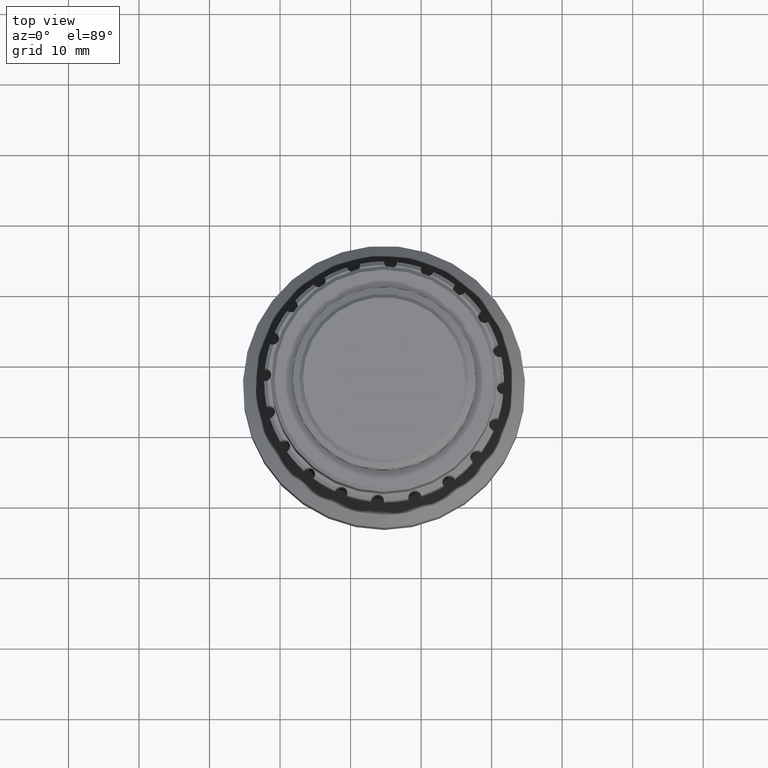
[diagram: clean part render]
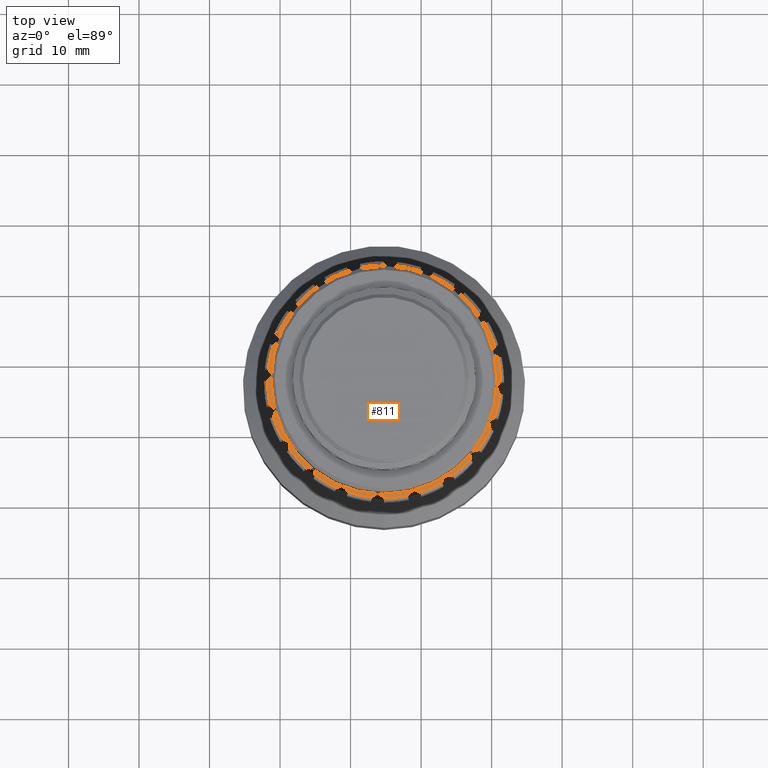
[diagram: same view with one face highlighted and labeled with its STEP entity id]
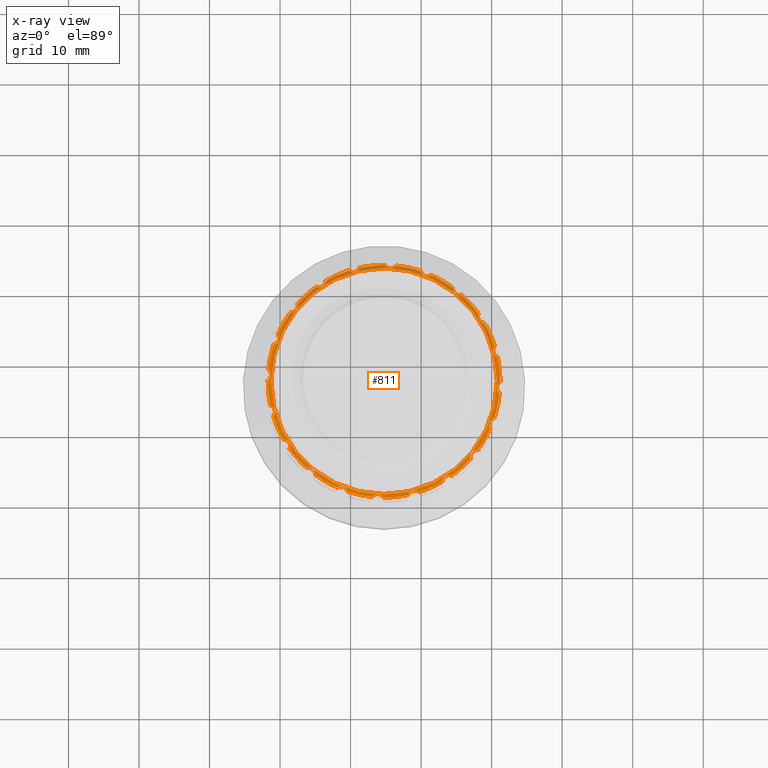
[diagram: x-ray of the same camera — body ghosted, the highlighted face saturated]
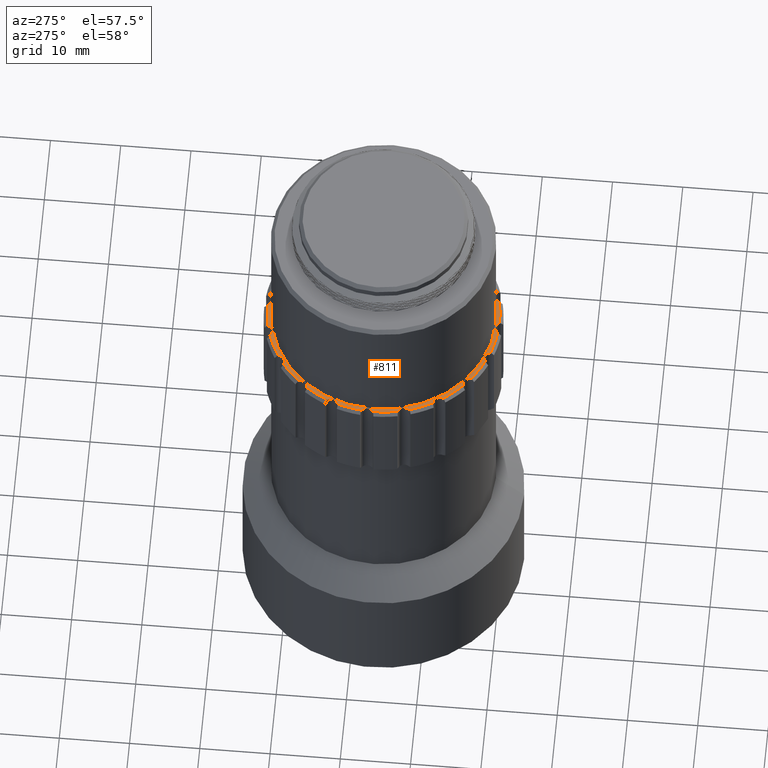
[diagram: same view with one face highlighted and labeled with its STEP entity id]
A machine part, top view. The second image highlights one B-rep face of the part: STEP entity #811.
The next image is the same camera in x-ray: the body ghosted, the highlighted face saturated — about 21% of this face is hidden behind the body in this view.
A second angle (auxiliary view) of the same face is appended — the face is thin or edge-on in the first view.
In plain terms, the highlighted planar face has unit normal (0, 0, 1).
Its self-contained STEP definition (entity closure, byte-faithful):
#3 = AXIS2_PLACEMENT_3D ( 'NONE', #9148, #7449, #13758 ) ;
#87 = DIRECTION ( 'NONE',  ( 1.000000000000000000, 0.000000000000000000, 0.000000000000000000 ) ) ;
#193 = CIRCLE ( 'NONE', #3736, 0.9347278216152304919 ) ;
#300 = DIRECTION ( 'NONE',  ( 0.000000000000000000, 0.000000000000000000, 1.000000000000000000 ) ) ;
#332 = EDGE_CURVE ( 'NONE', #16464, #7477, #2725, .T. ) ;
#357 = ORIENTED_EDGE ( 'NONE', *, *, #12848, .T. ) ;
#385 = DIRECTION ( 'NONE',  ( 0.000000000000000000, 0.000000000000000000, 1.000000000000000000 ) ) ;
#485 = EDGE_CURVE ( 'NONE', #6418, #17703, #4331, .T. ) ;
#490 = EDGE_CURVE ( 'NONE', #16464, #13504, #18427, .T. ) ;
#510 = CARTESIAN_POINT ( 'NONE',  ( -105.2614081662234184, -83.12817323313825568, 7.999999999999996447 ) ) ;
#533 = CARTESIAN_POINT ( 'NONE',  ( -119.5378223268529752, -91.40065766734394970, 7.999999999999996447 ) ) ;
#594 = EDGE_CURVE ( 'NONE', #18021, #13021, #1120, .T. ) ;
#673 = AXIS2_PLACEMENT_3D ( 'NONE', #12664, #4942, #1926 ) ;
#794 = DIRECTION ( 'NONE',  ( 0.000000000000000000, 0.000000000000000000, 1.000000000000000000 ) ) ;
#811 = ADVANCED_FACE ( 'NONE', ( #16605, #9263 ), #9068, .T. ) ;
#869 = DIRECTION ( 'NONE',  ( 0.000000000000000000, 0.000000000000000000, 1.000000000000000000 ) ) ;
#949 = EDGE_CURVE ( 'NONE', #4816, #16914, #13813, .T. ) ;
#953 = VERTEX_POINT ( 'NONE', #5035 ) ;
#986 = EDGE_CURVE ( 'NONE', #4558, #17703, #14794, .T. ) ;
#1064 = DIRECTION ( 'NONE',  ( 1.000000000000000000, 0.000000000000000000, 0.000000000000000000 ) ) ;
#1065 = CIRCLE ( 'NONE', #16455, 16.00000000000000000 ) ;
#1070 = DIRECTION ( 'NONE',  ( 0.000000000000000000, 0.000000000000000000, 1.000000000000000000 ) ) ;
#1116 = CARTESIAN_POINT ( 'NONE',  ( -89.26140816622341845, -83.12817323313825568, 7.999999999999996447 ) ) ;
#1120 = CIRCLE ( 'NONE', #9776, 16.49999999999998579 ) ;
#1215 = EDGE_CURVE ( 'NONE', #6589, #13504, #6832, .T. ) ;
#1243 = AXIS2_PLACEMENT_3D ( 'NONE', #11304, #17434, #3684 ) ;
#1638 = AXIS2_PLACEMENT_3D ( 'NONE', #17181, #4737, #17279 ) ;
#1717 = DIRECTION ( 'NONE',  ( 0.000000000000000000, 0.000000000000000000, 1.000000000000000000 ) ) ;
#1718 = DIRECTION ( 'NONE',  ( 0.000000000000000000, 0.000000000000000000, 1.000000000000000000 ) ) ;
#1757 = AXIS2_PLACEMENT_3D ( 'NONE', #7127, #19563, #10234 ) ;
#1797 = EDGE_CURVE ( 'NONE', #15614, #13867, #16563, .T. ) ;
#1840 = EDGE_CURVE ( 'NONE', #11071, #11368, #19130, .T. ) ;
#1897 = CIRCLE ( 'NONE', #2858, 16.49999999999998579 ) ;
#1926 = DIRECTION ( 'NONE',  ( 1.000000000000000000, 0.000000000000000000, 0.000000000000000000 ) ) ;
#1946 = CARTESIAN_POINT ( 'NONE',  ( -91.00111065570223445, -73.92109992991524337, 7.999999999999996447 ) ) ;
#2026 = VERTEX_POINT ( 'NONE', #5588 ) ;
#2079 = CIRCLE ( 'NONE', #11359, 16.49999999999998579 ) ;
#2082 = DIRECTION ( 'NONE',  ( 1.000000000000000000, 0.000000000000000000, 0.000000000000000000 ) ) ;
#2098 = CIRCLE ( 'NONE', #2732, 16.49999999999998579 ) ;
#2142 = CARTESIAN_POINT ( 'NONE',  ( -111.9488254906627276, -98.21221942535036931, 7.999999999999996447 ) ) ;
#2170 = CARTESIAN_POINT ( 'NONE',  ( -121.6737141911530244, -81.42928802687541179, 7.999999999999996447 ) ) ;
#2271 = DIRECTION ( 'NONE',  ( 1.000000000000000000, 0.000000000000000000, 0.000000000000000000 ) ) ;
#2295 = CARTESIAN_POINT ( 'NONE',  ( -105.2614081662234184, -83.12817323313825568, 7.999999999999996447 ) ) ;
#2326 = DIRECTION ( 'NONE',  ( 0.000000000000000000, 0.000000000000000000, 1.000000000000000000 ) ) ;
#2381 = AXIS2_PLACEMENT_3D ( 'NONE', #11571, #2326, #16473 ) ;
#2385 = EDGE_CURVE ( 'NONE', #7481, #17858, #18902, .T. ) ;
#2403 = CARTESIAN_POINT ( 'NONE',  ( -105.3748930782325175, -99.62778296109080145, 7.999999999999996447 ) ) ;
#2513 = AXIS2_PLACEMENT_3D ( 'NONE', #2852, #8971, #18117 ) ;
#2605 = CARTESIAN_POINT ( 'NONE',  ( -88.76179843827090110, -83.24165814514741157, 7.999999999999996447 ) ) ;
#2643 = CARTESIAN_POINT ( 'NONE',  ( -96.98892373201766759, -97.40458739376778396, 7.999999999999996447 ) ) ;
#2656 = DIRECTION ( 'NONE',  ( 1.000000000000000000, 0.000000000000000000, 0.000000000000000000 ) ) ;
#2704 = EDGE_CURVE ( 'NONE', #15614, #13021, #19861, .T. ) ;
#2725 = CIRCLE ( 'NONE', #5310, 16.49999999999998579 ) ;
#2732 = AXIS2_PLACEMENT_3D ( 'NONE', #15353, #300, #87 ) ;
#2778 = AXIS2_PLACEMENT_3D ( 'NONE', #11515, #869, #3989 ) ;
#2852 = CARTESIAN_POINT ( 'NONE',  ( -105.2614081662234184, -83.12817323313825568, 7.999999999999996447 ) ) ;
#2858 = AXIS2_PLACEMENT_3D ( 'NONE', #5093, #4996, #11206 ) ;
#2867 = AXIS2_PLACEMENT_3D ( 'NONE', #13571, #1718, #16790 ) ;
#2920 = DIRECTION ( 'NONE',  ( 1.000000000000000000, 0.000000000000000000, 0.000000000000000000 ) ) ;
#3047 = VERTEX_POINT ( 'NONE', #18232 ) ;
#3050 = CIRCLE ( 'NONE', #7528, 0.9347278216152429264 ) ;
#3095 = AXIS2_PLACEMENT_3D ( 'NONE', #2295, #794, #19056 ) ;
#3117 = ORIENTED_EDGE ( 'NONE', *, *, #11404, .F. ) ;
#3275 = CARTESIAN_POINT ( 'NONE',  ( -95.65499212197198631, -96.54334266124270414, 7.999999999999996447 ) ) ;
#3325 = CIRCLE ( 'NONE', #9731, 16.49999999999998579 ) ;
#3387 = DIRECTION ( 'NONE',  ( 0.000000000000000000, 0.000000000000000000, 1.000000000000000000 ) ) ;
#3415 = CIRCLE ( 'NONE', #17197, 16.49999999999998579 ) ;
#3485 = CARTESIAN_POINT ( 'NONE',  ( -120.9885382807355541, -88.11890247456233283, 7.999999999999996447 ) ) ;
#3498 = CIRCLE ( 'NONE', #14052, 0.9347278216152317132 ) ;
#3510 = CARTESIAN_POINT ( 'NONE',  ( -109.6111809516670661, -66.72068224229775524, 7.999999999999996447 ) ) ;
#3513 = CARTESIAN_POINT ( 'NONE',  ( -100.0548177946645296, -67.47118065145802746, 7.999999999999996447 ) ) ;
#3611 = CARTESIAN_POINT ( 'NONE',  ( -110.2521374076476519, -67.40104311862619113, 7.999999999999996447 ) ) ;
#3646 = AXIS2_PLACEMENT_3D ( 'NONE', #7533, #13650, #19778 ) ;
#3661 = DIRECTION ( 'NONE',  ( 0.000000000000000000, 0.000000000000000000, 1.000000000000000000 ) ) ;
#3684 = DIRECTION ( 'NONE',  ( 1.000000000000000000, 0.000000000000000000, 0.000000000000000000 ) ) ;
#3696 = AXIS2_PLACEMENT_3D ( 'NONE', #3699, #11214, #2082 ) ;
#3699 = CARTESIAN_POINT ( 'NONE',  ( -105.2614081662234184, -83.12817323313825568, 7.999999999999996447 ) ) ;
#3736 = AXIS2_PLACEMENT_3D ( 'NONE', #3986, #13109, #11606 ) ;
#3760 = ORIENTED_EDGE ( 'NONE', *, *, #19237, .T. ) ;
#3777 = ORIENTED_EDGE ( 'NONE', *, *, #11756, .F. ) ;
#3949 = EDGE_CURVE ( 'NONE', #18645, #15713, #10576, .T. ) ;
#3984 = CIRCLE ( 'NONE', #3646, 0.9347278216152339336 ) ;
#3986 = CARTESIAN_POINT ( 'NONE',  ( -104.3280943669993377, -66.17956829787362949, 7.999999999999996447 ) ) ;
#3989 = DIRECTION ( 'NONE',  ( 0.000000000000000000, 1.000000000000000000, 0.000000000000000000 ) ) ;
#4296 = EDGE_CURVE ( 'NONE', #14223, #19057, #6751, .T. ) ;
#4298 = ORIENTED_EDGE ( 'NONE', *, *, #10094, .T. ) ;
#4303 = ORIENTED_EDGE ( 'NONE', *, *, #9536, .F. ) ;
#4331 = CIRCLE ( 'NONE', #19074, 0.9347278216152398178 ) ;
#4414 = DIRECTION ( 'NONE',  ( 0.000000000000000000, 0.000000000000000000, 1.000000000000000000 ) ) ;
#4455 = DIRECTION ( 'NONE',  ( 0.000000000000000000, 0.000000000000000000, 1.000000000000000000 ) ) ;
#4530 = CARTESIAN_POINT ( 'NONE',  ( -105.2614081662234184, -83.12817323313825568, 7.999999999999996447 ) ) ;
#4558 = VERTEX_POINT ( 'NONE', #3611 ) ;
#4650 = ORIENTED_EDGE ( 'NONE', *, *, #7441, .T. ) ;
#4651 = EDGE_CURVE ( 'NONE', #953, #17858, #3415, .T. ) ;
#4737 = DIRECTION ( 'NONE',  ( 0.000000000000000000, 0.000000000000000000, 1.000000000000000000 ) ) ;
#4771 = CIRCLE ( 'NONE', #1243, 16.49999999999998579 ) ;
#4778 = ORIENTED_EDGE ( 'NONE', *, *, #12110, .T. ) ;
#4816 = VERTEX_POINT ( 'NONE', #3275 ) ;
#4852 = VERTEX_POINT ( 'NONE', #2170 ) ;
#4936 = CARTESIAN_POINT ( 'NONE',  ( -101.8054625334914931, -99.26218822580516132, 7.999999999999996447 ) ) ;
#4942 = DIRECTION ( 'NONE',  ( -0.000000000000000000, 0.000000000000000000, 1.000000000000000000 ) ) ;
#4996 = DIRECTION ( 'NONE',  ( 0.000000000000000000, 0.000000000000000000, 1.000000000000000000 ) ) ;
#5035 = CARTESIAN_POINT ( 'NONE',  ( -115.0514466553158570, -96.40993314596939001, 7.999999999999996447 ) ) ;
#5053 = ORIENTED_EDGE ( 'NONE', *, *, #949, .F. ) ;
#5088 = EDGE_CURVE ( 'NONE', #14683, #14729, #193, .T. ) ;
#5093 = CARTESIAN_POINT ( 'NONE',  ( -105.2614081662234184, -83.12817323313825568, 7.999999999999996447 ) ) ;
#5129 = DIRECTION ( 'NONE',  ( 1.000000000000000000, 0.000000000000000000, 0.000000000000000000 ) ) ;
#5201 = ORIENTED_EDGE ( 'NONE', *, *, #5346, .F. ) ;
#5310 = AXIS2_PLACEMENT_3D ( 'NONE', #510, #11449, #5129 ) ;
#5319 = CARTESIAN_POINT ( 'NONE',  ( -105.2614081662234184, -83.12817323313825568, 7.999999999999996447 ) ) ;
#5323 = DIRECTION ( 'NONE',  ( 0.000000000000000000, 0.000000000000000000, 1.000000000000000000 ) ) ;
#5346 = EDGE_CURVE ( 'NONE', #11423, #13867, #7249, .T. ) ;
#5422 = CARTESIAN_POINT ( 'NONE',  ( -105.2614081662234184, -83.12817323313825568, 7.999999999999996447 ) ) ;
#5442 = CIRCLE ( 'NONE', #2867, 0.9347278216152428154 ) ;
#5542 = CARTESIAN_POINT ( 'NONE',  ( -99.13636703977927311, -67.29750189238752967, 7.999999999999996447 ) ) ;
#5588 = CARTESIAN_POINT ( 'NONE',  ( -120.9184007479036751, -77.92158286157945213, 7.999999999999996447 ) ) ;
#5619 = EDGE_CURVE ( 'NONE', #4558, #10373, #19441, .T. ) ;
#5664 = CIRCLE ( 'NONE', #3095, 16.49999999999998579 ) ;
#5692 = CARTESIAN_POINT ( 'NONE',  ( -105.2614081662234184, -83.12817323313825568, 7.999999999999996447 ) ) ;
#5702 = EDGE_CURVE ( 'NONE', #4816, #11568, #5664, .T. ) ;
#5744 = CARTESIAN_POINT ( 'NONE',  ( -105.2614081662234184, -83.12817323313825568, 7.999999999999996447 ) ) ;
#5989 = ORIENTED_EDGE ( 'NONE', *, *, #14925, .F. ) ;
#6111 = CARTESIAN_POINT ( 'NONE',  ( -105.2614081662234184, -83.12817323313825568, 7.999999999999996447 ) ) ;
#6272 = CIRCLE ( 'NONE', #15236, 0.9347278216152304919 ) ;
#6389 = CARTESIAN_POINT ( 'NONE',  ( -88.84910214129382666, -84.82705843940111379, 7.999999999999996447 ) ) ;
#6418 = VERTEX_POINT ( 'NONE', #17691 ) ;
#6485 = ORIENTED_EDGE ( 'NONE', *, *, #8941, .T. ) ;
#6513 = DIRECTION ( 'NONE',  ( 0.8090169943749581094, -0.5877852522924585932, 0.000000000000000000 ) ) ;
#6589 = VERTEX_POINT ( 'NONE', #17589 ) ;
#6751 = CIRCLE ( 'NONE', #13776, 16.49999999999998579 ) ;
#6832 = CIRCLE ( 'NONE', #10040, 16.49999999999998579 ) ;
#6858 = CARTESIAN_POINT ( 'NONE',  ( -98.57399084178425142, -68.04412704092608521, 7.999999999999996447 ) ) ;
#7058 = EDGE_CURVE ( 'NONE', #2026, #17686, #5442, .T. ) ;
#7101 = DIRECTION ( 'NONE',  ( 0.000000000000000000, 0.000000000000000000, 1.000000000000000000 ) ) ;
#7127 = CARTESIAN_POINT ( 'NONE',  ( -89.43073682547273506, -89.25321435958244365, 7.999999999999996447 ) ) ;
#7249 = CIRCLE ( 'NONE', #9818, 0.9347278216152398178 ) ;
#7265 = AXIS2_PLACEMENT_3D ( 'NONE', #16032, #8495, #2271 ) ;
#7293 = CARTESIAN_POINT ( 'NONE',  ( -91.84623873811901262, -73.52175718888679512, 7.999999999999996447 ) ) ;
#7387 = DIRECTION ( 'NONE',  ( 1.000000000000000000, 0.000000000000000000, 0.000000000000000000 ) ) ;
#7422 = ORIENTED_EDGE ( 'NONE', *, *, #1797, .T. ) ;
#7441 = EDGE_CURVE ( 'NONE', #14350, #17686, #4771, .T. ) ;
#7449 = DIRECTION ( 'NONE',  ( 0.000000000000000000, 0.000000000000000000, 1.000000000000000000 ) ) ;
#7477 = VERTEX_POINT ( 'NONE', #6389 ) ;
#7481 = VERTEX_POINT ( 'NONE', #18630 ) ;
#7528 = AXIS2_PLACEMENT_3D ( 'NONE', #10303, #1070, #10493 ) ;
#7533 = CARTESIAN_POINT ( 'NONE',  ( -121.6688991570639615, -87.47794601858173280, 7.999999999999996447 ) ) ;
#7548 = DIRECTION ( 'NONE',  ( 0.000000000000000000, 0.000000000000000000, 1.000000000000000000 ) ) ;
#7616 = DIRECTION ( 'NONE',  ( 1.000000000000000000, 0.000000000000000000, 0.000000000000000000 ) ) ;
#7624 = ORIENTED_EDGE ( 'NONE', *, *, #5088, .F. ) ;
#7641 = EDGE_CURVE ( 'NONE', #11071, #15713, #12454, .T. ) ;
#7738 = EDGE_CURVE ( 'NONE', #3047, #17483, #3498, .T. ) ;
#8094 = EDGE_CURVE ( 'NONE', #17624, #12380, #1897, .T. ) ;
#8243 = DIRECTION ( 'NONE',  ( -0.3090169943749532244, 0.9510565162951516438, 0.000000000000000000 ) ) ;
#8269 = DIRECTION ( 'NONE',  ( 0.8090169943749458970, 0.5877852522924752465, 0.000000000000000000 ) ) ;
#8342 = ORIENTED_EDGE ( 'NONE', *, *, #9682, .T. ) ;
#8379 = VERTEX_POINT ( 'NONE', #9874 ) ;
#8423 = DIRECTION ( 'NONE',  ( 1.000000000000000000, 0.000000000000000000, 0.000000000000000000 ) ) ;
#8487 = CARTESIAN_POINT ( 'NONE',  ( -105.2614081662234184, -83.12817323313825568, 7.999999999999996447 ) ) ;
#8495 = DIRECTION ( 'NONE',  ( 0.000000000000000000, 0.000000000000000000, 1.000000000000000000 ) ) ;
#8499 = CIRCLE ( 'NONE', #3696, 16.49999999999998579 ) ;
#8527 = DIRECTION ( 'NONE',  ( 0.000000000000000000, 0.000000000000000000, 1.000000000000000000 ) ) ;
#8551 = DIRECTION ( 'NONE',  ( 0.000000000000000000, 0.000000000000000000, 1.000000000000000000 ) ) ;
#8591 = DIRECTION ( 'NONE',  ( 0.000000000000000000, 0.000000000000000000, 1.000000000000000000 ) ) ;
#8680 = AXIS2_PLACEMENT_3D ( 'NONE', #9347, #1717, #14172 ) ;
#8683 = ORIENTED_EDGE ( 'NONE', *, *, #2385, .F. ) ;
#8715 = ORIENTED_EDGE ( 'NONE', *, *, #1215, .T. ) ;
#8832 = VERTEX_POINT ( 'NONE', #3513 ) ;
#8906 = CARTESIAN_POINT ( 'NONE',  ( -103.5625229599607593, -66.71586720820863547, 7.999999999999996447 ) ) ;
#8941 = EDGE_CURVE ( 'NONE', #14683, #10373, #18601, .T. ) ;
#8971 = DIRECTION ( 'NONE',  ( 0.000000000000000000, 0.000000000000000000, 1.000000000000000000 ) ) ;
#9068 = PLANE ( 'NONE',  #2513 ) ;
#9080 = AXIS2_PLACEMENT_3D ( 'NONE', #11022, #385, #6513 ) ;
#9087 = ORIENTED_EDGE ( 'NONE', *, *, #9506, .F. ) ;
#9107 = CIRCLE ( 'NONE', #2381, 0.9347278216152429264 ) ;
#9148 = CARTESIAN_POINT ( 'NONE',  ( -105.2614081662234184, -83.12817323313825568, 7.999999999999996447 ) ) ;
#9263 = FACE_BOUND ( 'NONE', #10956, .T. ) ;
#9301 = AXIS2_PLACEMENT_3D ( 'NONE', #5422, #8527, #8423 ) ;
#9347 = CARTESIAN_POINT ( 'NONE',  ( -115.9786149187604281, -96.29129456976937718, 7.999999999999996447 ) ) ;
#9374 = AXIS2_PLACEMENT_3D ( 'NONE', #14822, #10589, #1064 ) ;
#9386 = ORIENTED_EDGE ( 'NONE', *, *, #7058, .F. ) ;
#9436 = CARTESIAN_POINT ( 'NONE',  ( -113.5338926004292830, -68.85175907250879845, 7.999999999999996447 ) ) ;
#9506 = EDGE_CURVE ( 'NONE', #17624, #4852, #12851, .T. ) ;
#9536 = EDGE_CURVE ( 'NONE', #953, #14736, #18288, .T. ) ;
#9566 = EDGE_CURVE ( 'NONE', #8832, #19057, #9631, .T. ) ;
#9590 = CARTESIAN_POINT ( 'NONE',  ( -90.98499400559393280, -74.85568879893244798, 7.999999999999996447 ) ) ;
#9631 = CIRCLE ( 'NONE', #17988, 0.9347278216152428154 ) ;
#9638 = CARTESIAN_POINT ( 'NONE',  ( -100.9116353807799129, -99.53566422397879876, 7.999999999999996447 ) ) ;
#9682 = EDGE_CURVE ( 'NONE', #6418, #8379, #16371, .T. ) ;
#9718 = CIRCLE ( 'NONE', #9080, 0.9347278216152347108 ) ;
#9731 = AXIS2_PLACEMENT_3D ( 'NONE', #5692, #7101, #7387 ) ;
#9776 = AXIS2_PLACEMENT_3D ( 'NONE', #6111, #12431, #7616 ) ;
#9793 = ORIENTED_EDGE ( 'NONE', *, *, #332, .T. ) ;
#9818 = AXIS2_PLACEMENT_3D ( 'NONE', #1946, #3661, #15798 ) ;
#9830 = ORIENTED_EDGE ( 'NONE', *, *, #485, .F. ) ;
#9874 = CARTESIAN_POINT ( 'NONE',  ( -117.5406629876947875, -72.10683479221503944, 7.999999999999996447 ) ) ;
#9962 = CARTESIAN_POINT ( 'NONE',  ( -95.47136967713109357, -69.84641332030703609, 7.999999999999996447 ) ) ;
#9970 = DIRECTION ( 'NONE',  ( 0.000000000000000000, 0.000000000000000000, 1.000000000000000000 ) ) ;
#9975 = ORIENTED_EDGE ( 'NONE', *, *, #7738, .F. ) ;
#10000 = ORIENTED_EDGE ( 'NONE', *, *, #17572, .F. ) ;
#10023 = DIRECTION ( 'NONE',  ( 0.3090169943749532244, -0.9510565162951516438, 0.000000000000000000 ) ) ;
#10040 = AXIS2_PLACEMENT_3D ( 'NONE', #16071, #11556, #11648 ) ;
#10094 = EDGE_CURVE ( 'NONE', #11423, #17626, #2079, .T. ) ;
#10234 = DIRECTION ( 'NONE',  ( -0.9510565162951560847, 0.3090169943749397907, 0.000000000000000000 ) ) ;
#10249 = AXIS2_PLACEMENT_3D ( 'NONE', #15463, #7548, #12460 ) ;
#10303 = CARTESIAN_POINT ( 'NONE',  ( -94.54420141368652253, -69.96505189650706313, 7.999999999999996447 ) ) ;
#10373 = VERTEX_POINT ( 'NONE', #19060 ) ;
#10493 = DIRECTION ( 'NONE',  ( -0.5877852522924682521, -0.8090169943749510040, 0.000000000000000000 ) ) ;
#10497 = ORIENTED_EDGE ( 'NONE', *, *, #3949, .F. ) ;
#10563 = AXIS2_PLACEMENT_3D ( 'NONE', #17315, #9970, #16005 ) ;
#10576 = CIRCLE ( 'NONE', #14446, 0.9347278216152339336 ) ;
#10589 = DIRECTION ( 'NONE',  ( 0.000000000000000000, 0.000000000000000000, 1.000000000000000000 ) ) ;
#10637 = CARTESIAN_POINT ( 'NONE',  ( -105.2614081662234184, -83.12817323313825568, 7.999999999999996447 ) ) ;
#10723 = EDGE_CURVE ( 'NONE', #14801, #17483, #8499, .T. ) ;
#10956 = EDGE_LOOP ( 'NONE', ( #5989 ) ) ;
#11022 = CARTESIAN_POINT ( 'NONE',  ( -118.4245295028546536, -72.41096648060140240, 7.999999999999996447 ) ) ;
#11063 = EDGE_LOOP ( 'NONE', ( #9975, #4778, #4303, #11857, #8683, #18087, #19317, #12095, #10497, #3760, #5053, #16422, #15787, #8715, #17328, #9793, #3777, #15610, #19864, #7422, #5201, #4298, #3117, #16595, #12025, #11295, #7624, #6485, #15814, #15762, #9830, #8342, #15158, #4650, #9386, #357, #9087, #15750, #10000, #15827 ) ) ;
#11071 = VERTEX_POINT ( 'NONE', #2403 ) ;
#11146 = DIRECTION ( 'NONE',  ( 0.000000000000000000, 0.000000000000000000, 1.000000000000000000 ) ) ;
#11206 = DIRECTION ( 'NONE',  ( 1.000000000000000000, 0.000000000000000000, 0.000000000000000000 ) ) ;
#11214 = DIRECTION ( 'NONE',  ( 0.000000000000000000, 0.000000000000000000, 1.000000000000000000 ) ) ;
#11295 = ORIENTED_EDGE ( 'NONE', *, *, #14206, .T. ) ;
#11304 = CARTESIAN_POINT ( 'NONE',  ( -105.2614081662234184, -83.12817323313825568, 7.999999999999996447 ) ) ;
#11359 = AXIS2_PLACEMENT_3D ( 'NONE', #10637, #12141, #15062 ) ;
#11368 = VERTEX_POINT ( 'NONE', #15022 ) ;
#11404 = EDGE_CURVE ( 'NONE', #14223, #17626, #3050, .T. ) ;
#11423 = VERTEX_POINT ( 'NONE', #7293 ) ;
#11433 = DIRECTION ( 'NONE',  ( 0.000000000000000000, 0.000000000000000000, 1.000000000000000000 ) ) ;
#11449 = DIRECTION ( 'NONE',  ( 0.000000000000000000, 0.000000000000000000, 1.000000000000000000 ) ) ;
#11485 = DIRECTION ( 'NONE',  ( 0.000000000000000000, 0.000000000000000000, 1.000000000000000000 ) ) ;
#11515 = CARTESIAN_POINT ( 'NONE',  ( -106.1947219654476129, -100.0767781684028677, 7.999999999999996447 ) ) ;
#11556 = DIRECTION ( 'NONE',  ( 0.000000000000000000, 0.000000000000000000, 1.000000000000000000 ) ) ;
#11568 = VERTEX_POINT ( 'NONE', #12404 ) ;
#11571 = CARTESIAN_POINT ( 'NONE',  ( -92.09828682959228274, -93.84537998567522266, 7.999999999999996447 ) ) ;
#11606 = DIRECTION ( 'NONE',  ( 1.484687572884407299E-14, -1.000000000000000000, 0.000000000000000000 ) ) ;
#11627 = CIRCLE ( 'NONE', #9374, 16.49999999999998579 ) ;
#11648 = DIRECTION ( 'NONE',  ( 1.000000000000000000, 0.000000000000000000, 0.000000000000000000 ) ) ;
#11661 = DIRECTION ( 'NONE',  ( -0.3090169943749354053, -0.9510565162951575280, 0.000000000000000000 ) ) ;
#11672 = DIRECTION ( 'NONE',  ( 0.000000000000000000, 0.000000000000000000, 1.000000000000000000 ) ) ;
#11756 = EDGE_CURVE ( 'NONE', #18021, #7477, #6272, .T. ) ;
#11824 = CARTESIAN_POINT ( 'NONE',  ( -116.2827466071467768, -95.40742805460951104, 7.999999999999996447 ) ) ;
#11857 = ORIENTED_EDGE ( 'NONE', *, *, #4651, .T. ) ;
#11906 = AXIS2_PLACEMENT_3D ( 'NONE', #17379, #11146, #12355 ) ;
#11958 = DIRECTION ( 'NONE',  ( 1.000000000000000000, 0.000000000000000000, 0.000000000000000000 ) ) ;
#12025 = ORIENTED_EDGE ( 'NONE', *, *, #9566, .F. ) ;
#12095 = ORIENTED_EDGE ( 'NONE', *, *, #7641, .T. ) ;
#12110 = EDGE_CURVE ( 'NONE', #3047, #14736, #17486, .T. ) ;
#12141 = DIRECTION ( 'NONE',  ( 0.000000000000000000, 0.000000000000000000, 1.000000000000000000 ) ) ;
#12355 = DIRECTION ( 'NONE',  ( -0.5877852522924752465, 0.8090169943749458970, 0.000000000000000000 ) ) ;
#12380 = VERTEX_POINT ( 'NONE', #18624 ) ;
#12404 = CARTESIAN_POINT ( 'NONE',  ( -92.98215334475213467, -94.14951167406157140, 7.999999999999996447 ) ) ;
#12431 = DIRECTION ( 'NONE',  ( 0.000000000000000000, 0.000000000000000000, 1.000000000000000000 ) ) ;
#12454 = CIRCLE ( 'NONE', #13417, 16.49999999999998579 ) ;
#12460 = DIRECTION ( 'NONE',  ( -0.9510565162951516438, -0.3090169943749532244, 0.000000000000000000 ) ) ;
#12664 = CARTESIAN_POINT ( 'NONE',  ( -122.2100131014880304, -82.19485943391399019, 7.999999999999996447 ) ) ;
#12729 = DIRECTION ( 'NONE',  ( 0.000000000000000000, 0.000000000000000000, 1.000000000000000000 ) ) ;
#12848 = EDGE_CURVE ( 'NONE', #2026, #4852, #3325, .T. ) ;
#12851 = CIRCLE ( 'NONE', #673, 0.9347278216152304919 ) ;
#12998 = AXIS2_PLACEMENT_3D ( 'NONE', #4530, #12729, #2920 ) ;
#13021 = VERTEX_POINT ( 'NONE', #17323 ) ;
#13109 = DIRECTION ( 'NONE',  ( 0.000000000000000000, 0.000000000000000000, 1.000000000000000000 ) ) ;
#13417 = AXIS2_PLACEMENT_3D ( 'NONE', #16223, #19322, #2656 ) ;
#13485 = EDGE_CURVE ( 'NONE', #6589, #11568, #9107, .T. ) ;
#13504 = VERTEX_POINT ( 'NONE', #14777 ) ;
#13571 = CARTESIAN_POINT ( 'NONE',  ( -121.0920795069741445, -77.00313210669418140, 7.999999999999996447 ) ) ;
#13650 = DIRECTION ( 'NONE',  ( 0.000000000000000000, 0.000000000000000000, 1.000000000000000000 ) ) ;
#13758 = DIRECTION ( 'NONE',  ( 1.000000000000000000, 0.000000000000000000, 0.000000000000000000 ) ) ;
#13776 = AXIS2_PLACEMENT_3D ( 'NONE', #8487, #8591, #19022 ) ;
#13813 = CIRCLE ( 'NONE', #11906, 0.9347278216152317132 ) ;
#13867 = VERTEX_POINT ( 'NONE', #9590 ) ;
#14004 = CARTESIAN_POINT ( 'NONE',  ( -100.2706789247993271, -98.85530334765037708, 7.999999999999996447 ) ) ;
#14052 = AXIS2_PLACEMENT_3D ( 'NONE', #19296, #11485, #8269 ) ;
#14172 = DIRECTION ( 'NONE',  ( 0.5877852522924752465, 0.8090169943749458970, 0.000000000000000000 ) ) ;
#14206 = EDGE_CURVE ( 'NONE', #8832, #14729, #16480, .T. ) ;
#14223 = VERTEX_POINT ( 'NONE', #9962 ) ;
#14321 = AXIS2_PLACEMENT_3D ( 'NONE', #3510, #5323, #10023 ) ;
#14350 = VERTEX_POINT ( 'NONE', #16674 ) ;
#14446 = AXIS2_PLACEMENT_3D ( 'NONE', #9638, #18773, #8243 ) ;
#14603 = EDGE_CURVE ( 'NONE', #14350, #8379, #9718, .T. ) ;
#14683 = VERTEX_POINT ( 'NONE', #19154 ) ;
#14729 = VERTEX_POINT ( 'NONE', #8906 ) ;
#14736 = VERTEX_POINT ( 'NONE', #11824 ) ;
#14777 = CARTESIAN_POINT ( 'NONE',  ( -90.17736197401129061, -89.81559055757747956, 7.999999999999996447 ) ) ;
#14794 = CIRCLE ( 'NONE', #1638, 16.49999999999998579 ) ;
#14801 = VERTEX_POINT ( 'NONE', #3485 ) ;
#14822 = CARTESIAN_POINT ( 'NONE',  ( -105.2614081662234184, -83.12817323313825568, 7.999999999999996447 ) ) ;
#14872 = VERTEX_POINT ( 'NONE', #1116 ) ;
#14925 = EDGE_CURVE ( 'NONE', #14872, #14872, #1065, .T. ) ;
#14974 = CARTESIAN_POINT ( 'NONE',  ( -121.7610178941759500, -83.01468832112909979, 7.999999999999996447 ) ) ;
#15022 = CARTESIAN_POINT ( 'NONE',  ( -106.9602933724862197, -99.54047925806787589, 7.999999999999996447 ) ) ;
#15062 = DIRECTION ( 'NONE',  ( 1.000000000000000000, 0.000000000000000000, 0.000000000000000000 ) ) ;
#15158 = ORIENTED_EDGE ( 'NONE', *, *, #14603, .F. ) ;
#15236 = AXIS2_PLACEMENT_3D ( 'NONE', #18495, #4455, #15475 ) ;
#15353 = CARTESIAN_POINT ( 'NONE',  ( -105.2614081662234184, -83.12817323313825568, 7.999999999999996447 ) ) ;
#15463 = CARTESIAN_POINT ( 'NONE',  ( -88.85391717538290379, -78.77840044769467909, 7.999999999999996447 ) ) ;
#15475 = DIRECTION ( 'NONE',  ( -1.000000000000000000, 0.000000000000000000, 0.000000000000000000 ) ) ;
#15610 = ORIENTED_EDGE ( 'NONE', *, *, #594, .T. ) ;
#15614 = VERTEX_POINT ( 'NONE', #16882 ) ;
#15713 = VERTEX_POINT ( 'NONE', #4936 ) ;
#15750 = ORIENTED_EDGE ( 'NONE', *, *, #8094, .T. ) ;
#15762 = ORIENTED_EDGE ( 'NONE', *, *, #986, .T. ) ;
#15787 = ORIENTED_EDGE ( 'NONE', *, *, #13485, .F. ) ;
#15798 = DIRECTION ( 'NONE',  ( -0.8090169943749389025, -0.5877852522924850165, 0.000000000000000000 ) ) ;
#15814 = ORIENTED_EDGE ( 'NONE', *, *, #5619, .F. ) ;
#15827 = ORIENTED_EDGE ( 'NONE', *, *, #10723, .T. ) ;
#15931 = EDGE_CURVE ( 'NONE', #7481, #11368, #11627, .T. ) ;
#16005 = DIRECTION ( 'NONE',  ( 0.3090169943749397907, 0.9510565162951560847, 0.000000000000000000 ) ) ;
#16032 = CARTESIAN_POINT ( 'NONE',  ( -105.2614081662234184, -83.12817323313825568, 7.999999999999996447 ) ) ;
#16053 = DIRECTION ( 'NONE',  ( 1.000000000000000000, 0.000000000000000000, 0.000000000000000000 ) ) ;
#16071 = CARTESIAN_POINT ( 'NONE',  ( -105.2614081662234184, -83.12817323313825568, 7.999999999999996447 ) ) ;
#16223 = CARTESIAN_POINT ( 'NONE',  ( -105.2614081662234184, -83.12817323313825568, 7.999999999999996447 ) ) ;
#16371 = CIRCLE ( 'NONE', #3, 16.49999999999998579 ) ;
#16422 = ORIENTED_EDGE ( 'NONE', *, *, #5702, .T. ) ;
#16455 = AXIS2_PLACEMENT_3D ( 'NONE', #18633, #3387, #17239 ) ;
#16464 = VERTEX_POINT ( 'NONE', #17990 ) ;
#16473 = DIRECTION ( 'NONE',  ( -0.8090169943749510040, 0.5877852522924682521, 0.000000000000000000 ) ) ;
#16480 = CIRCLE ( 'NONE', #18089, 16.49999999999998579 ) ;
#16563 = CIRCLE ( 'NONE', #7265, 16.49999999999998579 ) ;
#16595 = ORIENTED_EDGE ( 'NONE', *, *, #4296, .T. ) ;
#16605 = FACE_OUTER_BOUND ( 'NONE', #11063, .T. ) ;
#16674 = CARTESIAN_POINT ( 'NONE',  ( -118.5431680790546665, -73.33813474404595922, 7.999999999999996447 ) ) ;
#16767 = CARTESIAN_POINT ( 'NONE',  ( -94.24006972530017379, -70.84891841166691506, 7.999999999999996447 ) ) ;
#16790 = DIRECTION ( 'NONE',  ( 0.9510565162951575280, -0.3090169943749354053, 0.000000000000000000 ) ) ;
#16882 = CARTESIAN_POINT ( 'NONE',  ( -89.53427805171132547, -78.13744399171409327, 7.999999999999996447 ) ) ;
#16914 = VERTEX_POINT ( 'NONE', #2643 ) ;
#17181 = CARTESIAN_POINT ( 'NONE',  ( -105.2614081662234184, -83.12817323313825568, 7.999999999999996447 ) ) ;
#17197 = AXIS2_PLACEMENT_3D ( 'NONE', #5319, #11433, #16053 ) ;
#17239 = DIRECTION ( 'NONE',  ( 1.000000000000000000, 0.000000000000000000, 0.000000000000000000 ) ) ;
#17279 = DIRECTION ( 'NONE',  ( 1.000000000000000000, 0.000000000000000000, 0.000000000000000000 ) ) ;
#17315 = CARTESIAN_POINT ( 'NONE',  ( -111.3864492926676917, -98.95884457388892486, 7.999999999999996447 ) ) ;
#17323 = CARTESIAN_POINT ( 'NONE',  ( -89.12739317355652702, -79.67222760040627350, 7.999999999999996447 ) ) ;
#17328 = ORIENTED_EDGE ( 'NONE', *, *, #490, .F. ) ;
#17379 = CARTESIAN_POINT ( 'NONE',  ( -96.05433486300046297, -97.38847074365945389, 7.999999999999996447 ) ) ;
#17434 = DIRECTION ( 'NONE',  ( 0.000000000000000000, 0.000000000000000000, 1.000000000000000000 ) ) ;
#17483 = VERTEX_POINT ( 'NONE', #533 ) ;
#17486 = CIRCLE ( 'NONE', #12998, 16.49999999999998579 ) ;
#17572 = EDGE_CURVE ( 'NONE', #14801, #12380, #3984, .T. ) ;
#17589 = CARTESIAN_POINT ( 'NONE',  ( -91.97964825339225570, -92.91821172223066583, 7.999999999999996447 ) ) ;
#17624 = VERTEX_POINT ( 'NONE', #14974 ) ;
#17626 = VERTEX_POINT ( 'NONE', #16767 ) ;
#17686 = VERTEX_POINT ( 'NONE', #18662 ) ;
#17691 = CARTESIAN_POINT ( 'NONE',  ( -114.8678242104749501, -69.71300380503387828, 7.999999999999996447 ) ) ;
#17703 = VERTEX_POINT ( 'NONE', #9436 ) ;
#17858 = VERTEX_POINT ( 'NONE', #2142 ) ;
#17880 = CARTESIAN_POINT ( 'NONE',  ( -114.4684814694464876, -68.86787572261711432, 7.999999999999996447 ) ) ;
#17977 = DIRECTION ( 'NONE',  ( 0.5877852522924850165, -0.8090169943749389025, 0.000000000000000000 ) ) ;
#17988 = AXIS2_PLACEMENT_3D ( 'NONE', #5542, #8551, #11661 ) ;
#17990 = CARTESIAN_POINT ( 'NONE',  ( -89.60441558454320443, -88.33476360469717292, 7.999999999999996447 ) ) ;
#18021 = VERTEX_POINT ( 'NONE', #2605 ) ;
#18087 = ORIENTED_EDGE ( 'NONE', *, *, #15931, .T. ) ;
#18089 = AXIS2_PLACEMENT_3D ( 'NONE', #5744, #11672, #11958 ) ;
#18117 = DIRECTION ( 'NONE',  ( 1.000000000000000000, 0.000000000000000000, -0.000000000000000000 ) ) ;
#18232 = CARTESIAN_POINT ( 'NONE',  ( -118.6765775943279095, -92.73458927738964519, 7.999999999999996447 ) ) ;
#18288 = CIRCLE ( 'NONE', #8680, 0.9347278216152317132 ) ;
#18427 = CIRCLE ( 'NONE', #1757, 0.9347278216152296038 ) ;
#18495 = CARTESIAN_POINT ( 'NONE',  ( -88.31280323095882068, -84.06148703236252118, 7.999999999999996447 ) ) ;
#18601 = CIRCLE ( 'NONE', #9301, 16.49999999999998579 ) ;
#18624 = CARTESIAN_POINT ( 'NONE',  ( -121.3954231588903525, -86.58411886587013839, 7.999999999999996447 ) ) ;
#18630 = CARTESIAN_POINT ( 'NONE',  ( -110.4679985377824210, -98.78516581481845549, 7.999999999999996447 ) ) ;
#18633 = CARTESIAN_POINT ( 'NONE',  ( -105.2614081662234184, -83.12817323313825568, 7.999999999999996447 ) ) ;
#18645 = VERTEX_POINT ( 'NONE', #14004 ) ;
#18662 = CARTESIAN_POINT ( 'NONE',  ( -120.3454543584356173, -76.44075590869913128, 7.999999999999996447 ) ) ;
#18773 = DIRECTION ( 'NONE',  ( 0.000000000000000000, 0.000000000000000000, 1.000000000000000000 ) ) ;
#18902 = CIRCLE ( 'NONE', #10563, 0.9347278216152296038 ) ;
#19022 = DIRECTION ( 'NONE',  ( 1.000000000000000000, 0.000000000000000000, 0.000000000000000000 ) ) ;
#19056 = DIRECTION ( 'NONE',  ( 1.000000000000000000, 0.000000000000000000, 0.000000000000000000 ) ) ;
#19057 = VERTEX_POINT ( 'NONE', #6858 ) ;
#19060 = CARTESIAN_POINT ( 'NONE',  ( -108.7173537989554717, -66.99415824047137846, 7.999999999999996447 ) ) ;
#19074 = AXIS2_PLACEMENT_3D ( 'NONE', #17880, #4414, #17977 ) ;
#19130 = CIRCLE ( 'NONE', #2778, 0.9347278216152304919 ) ;
#19154 = CARTESIAN_POINT ( 'NONE',  ( -105.1479232542144331, -66.62856350518572413, 7.999999999999996447 ) ) ;
#19237 = EDGE_CURVE ( 'NONE', #18645, #16914, #2098, .T. ) ;
#19296 = CARTESIAN_POINT ( 'NONE',  ( -119.5217056767446593, -92.33524653636115431, 7.999999999999996447 ) ) ;
#19317 = ORIENTED_EDGE ( 'NONE', *, *, #1840, .F. ) ;
#19322 = DIRECTION ( 'NONE',  ( 0.000000000000000000, 0.000000000000000000, 1.000000000000000000 ) ) ;
#19441 = CIRCLE ( 'NONE', #14321, 0.9347278216152339336 ) ;
#19563 = DIRECTION ( 'NONE',  ( 0.000000000000000000, 0.000000000000000000, 1.000000000000000000 ) ) ;
#19778 = DIRECTION ( 'NONE',  ( 0.9510565162951516438, 0.3090169943749532244, 0.000000000000000000 ) ) ;
#19861 = CIRCLE ( 'NONE', #10249, 0.9347278216152339336 ) ;
#19864 = ORIENTED_EDGE ( 'NONE', *, *, #2704, .F. ) ;